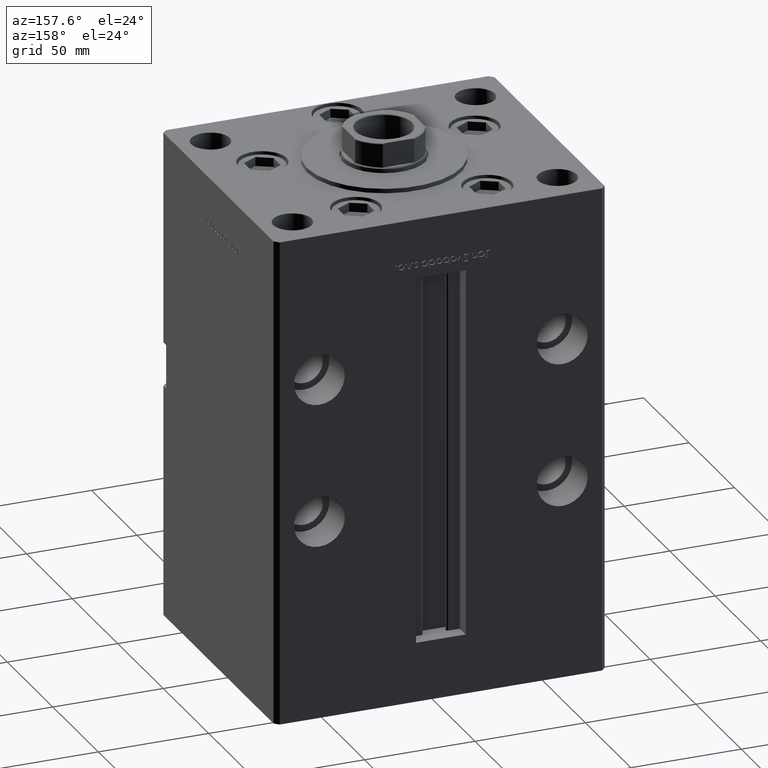
[diagram: clean part render]
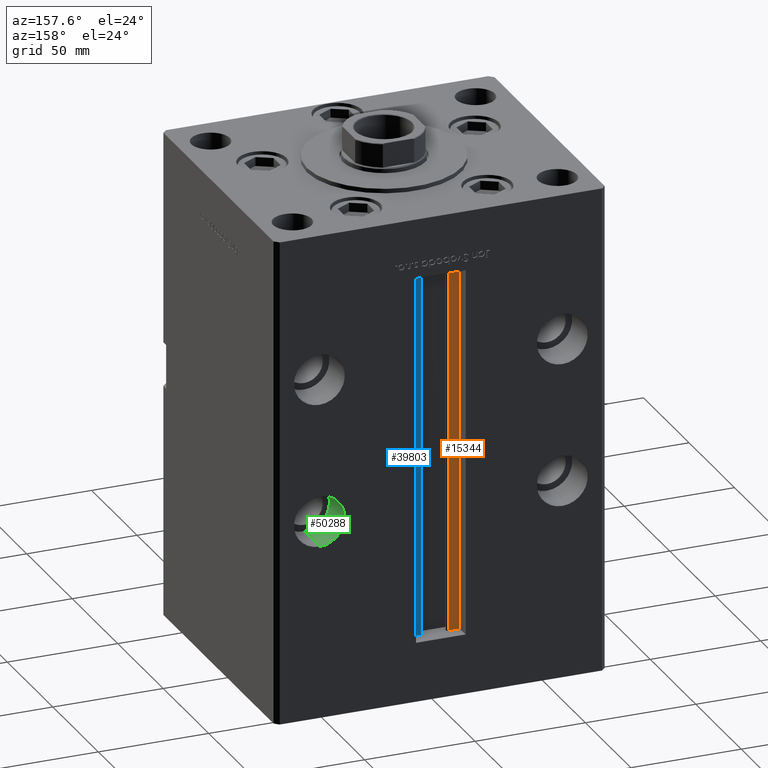
[diagram: same view with three faces highlighted in distinct colors, each labeled with its STEP entity id]
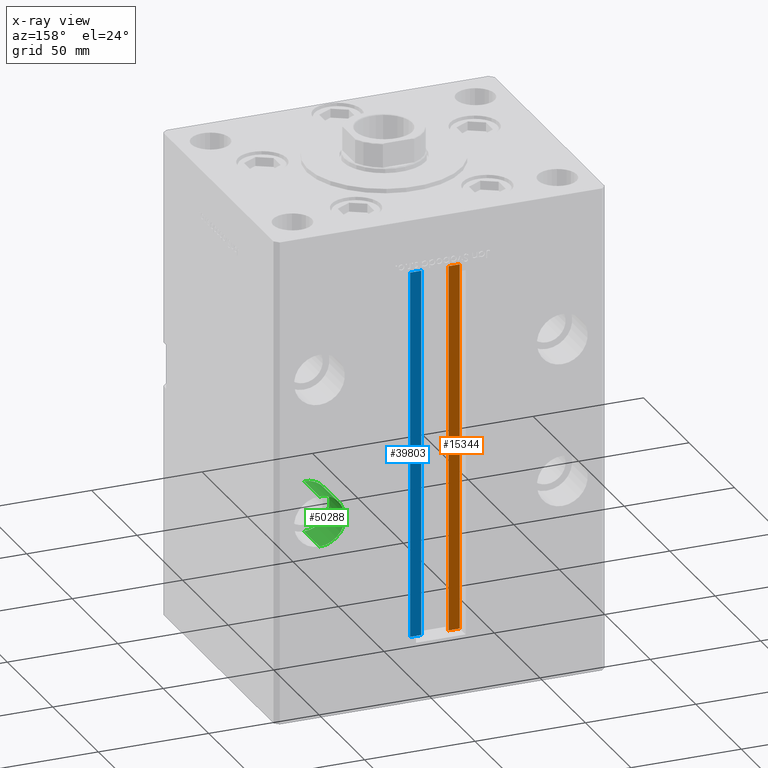
[diagram: x-ray of the same camera — body ghosted, the three highlighted faces saturated]
A machine part, auxiliary view with three faces highlighted in distinct colors.
The next image is the same camera in x-ray (body ghosted, the three faces saturated) — at least one of them is partly hidden behind the body in this view.
Their STEP definitions:

[orange] entity #15344 — the highlighted planar face has unit normal (0, -1, 0).
#2243 = CARTESIAN_POINT ( 'NONE',  ( -6.183333333334001480, 56.00000000000000000, 0.000000000000000000 ) ) ;
#4220 = CARTESIAN_POINT ( 'NONE',  ( -6.183333333334001480, 56.00000000000000000, 0.000000000000000000 ) ) ;
#5811 = EDGE_CURVE ( 'NONE', #18081, #52448, #6895, .T. ) ;
#6392 = LINE ( 'NONE', #17924, #9215 ) ;
#6895 = LINE ( 'NONE', #52200, #39136 ) ;
#7180 = EDGE_CURVE ( 'NONE', #18081, #47303, #6392, .T. ) ;
#7413 = DIRECTION ( 'NONE',  ( -0.000000000000000000, -0.000000000000000000, 1.000000000000000000 ) ) ;
#9215 = VECTOR ( 'NONE', #30258, 1000.000000000000000 ) ;
#9459 = EDGE_CURVE ( 'NONE', #52448, #33593, #44421, .T. ) ;
#10395 = DIRECTION ( 'NONE',  ( 1.000000000000000000, -0.000000000000000000, -0.000000000000000000 ) ) ;
#14864 = FACE_OUTER_BOUND ( 'NONE', #33101, .T. ) ;
#15121 = DIRECTION ( 'NONE',  ( 0.000000000000000000, 0.000000000000000000, -1.000000000000000000 ) ) ;
#15344 = ADVANCED_FACE ( 'NONE', ( #14864 ), #27181, .F. ) ;
#15470 = CARTESIAN_POINT ( 'NONE',  ( -6.183333333334001480, 56.00000000000000000, 0.000000000000000000 ) ) ;
#17924 = CARTESIAN_POINT ( 'NONE',  ( -11.25000000000000178, 56.00000000000000000, 0.000000000000000000 ) ) ;
#18081 = VERTEX_POINT ( 'NONE', #27064 ) ;
#18265 = CARTESIAN_POINT ( 'NONE',  ( 0.000000000000000000, 56.00000000000000000, 167.0000000000000000 ) ) ;
#21359 = ORIENTED_EDGE ( 'NONE', *, *, #7180, .T. ) ;
#22542 = ORIENTED_EDGE ( 'NONE', *, *, #5811, .F. ) ;
#23544 = CARTESIAN_POINT ( 'NONE',  ( -11.25000000000000178, 56.00000000000000000, 166.9999999999999432 ) ) ;
#24927 = ORIENTED_EDGE ( 'NONE', *, *, #38733, .F. ) ;
#27064 = CARTESIAN_POINT ( 'NONE',  ( -11.25000000000000178, 56.00000000000000000, 0.000000000000000000 ) ) ;
#27181 = PLANE ( 'NONE',  #27314 ) ;
#27314 = AXIS2_PLACEMENT_3D ( 'NONE', #2243, #43539, #15121 ) ;
#30258 = DIRECTION ( 'NONE',  ( -0.000000000000000000, -0.000000000000000000, 1.000000000000000000 ) ) ;
#33101 = EDGE_LOOP ( 'NONE', ( #34044, #22542, #21359, #24927 ) ) ;
#33593 = VERTEX_POINT ( 'NONE', #50692 ) ;
#34044 = ORIENTED_EDGE ( 'NONE', *, *, #9459, .F. ) ;
#38733 = EDGE_CURVE ( 'NONE', #33593, #47303, #47226, .T. ) ;
#39098 = VECTOR ( 'NONE', #51762, 1000.000000000000000 ) ;
#39136 = VECTOR ( 'NONE', #10395, 1000.000000000000000 ) ;
#42529 = VECTOR ( 'NONE', #7413, 1000.000000000000000 ) ;
#43539 = DIRECTION ( 'NONE',  ( 0.000000000000000000, -1.000000000000000000, -0.000000000000000000 ) ) ;
#44421 = LINE ( 'NONE', #15470, #42529 ) ;
#47226 = LINE ( 'NONE', #18265, #39098 ) ;
#47303 = VERTEX_POINT ( 'NONE', #23544 ) ;
#50692 = CARTESIAN_POINT ( 'NONE',  ( -6.183333333334002369, 56.00000000000000000, 166.9999999999999432 ) ) ;
#51762 = DIRECTION ( 'NONE',  ( -1.000000000000000000, 0.000000000000000000, 0.000000000000000000 ) ) ;
#52200 = CARTESIAN_POINT ( 'NONE',  ( -6.183333333334001480, 56.00000000000000000, 0.000000000000000000 ) ) ;
#52448 = VERTEX_POINT ( 'NONE', #4220 ) ;

[blue] entity #39803 — the highlighted planar face has unit normal (0, -1, 0).
#1501 = VECTOR ( 'NONE', #27556, 1000.000000000000000 ) ;
#3678 = DIRECTION ( 'NONE',  ( 0.000000000000000000, -0.000000000000000000, -1.000000000000000000 ) ) ;
#3928 = LINE ( 'NONE', #19488, #22505 ) ;
#4878 = VECTOR ( 'NONE', #16271, 1000.000000000000000 ) ;
#5606 = ORIENTED_EDGE ( 'NONE', *, *, #31191, .F. ) ;
#5858 = LINE ( 'NONE', #35084, #47286 ) ;
#5913 = EDGE_CURVE ( 'NONE', #44929, #18530, #48702, .T. ) ;
#6717 = AXIS2_PLACEMENT_3D ( 'NONE', #24060, #32359, #3678 ) ;
#6809 = EDGE_CURVE ( 'NONE', #37535, #22740, #14694, .T. ) ;
#11466 = FACE_OUTER_BOUND ( 'NONE', #23440, .T. ) ;
#13210 = ORIENTED_EDGE ( 'NONE', *, *, #6809, .F. ) ;
#14694 = LINE ( 'NONE', #51933, #1501 ) ;
#16271 = DIRECTION ( 'NONE',  ( -0.000000000000000000, -0.000000000000000000, 1.000000000000000000 ) ) ;
#18530 = VERTEX_POINT ( 'NONE', #36578 ) ;
#18721 = DIRECTION ( 'NONE',  ( -1.000000000000000000, 0.000000000000000000, 0.000000000000000000 ) ) ;
#19488 = CARTESIAN_POINT ( 'NONE',  ( 6.183333333334001480, 56.00000000000000000, 0.000000000000000000 ) ) ;
#19763 = PLANE ( 'NONE',  #6717 ) ;
#22505 = VECTOR ( 'NONE', #35852, 1000.000000000000000 ) ;
#22740 = VERTEX_POINT ( 'NONE', #39413 ) ;
#23440 = EDGE_LOOP ( 'NONE', ( #13210, #5606, #43199, #31876 ) ) ;
#24060 = CARTESIAN_POINT ( 'NONE',  ( 6.183333333334001480, 56.00000000000000000, 0.000000000000000000 ) ) ;
#27556 = DIRECTION ( 'NONE',  ( -0.000000000000000000, -0.000000000000000000, 1.000000000000000000 ) ) ;
#30164 = EDGE_CURVE ( 'NONE', #22740, #18530, #5858, .T. ) ;
#31191 = EDGE_CURVE ( 'NONE', #44929, #37535, #3928, .T. ) ;
#31876 = ORIENTED_EDGE ( 'NONE', *, *, #30164, .F. ) ;
#32359 = DIRECTION ( 'NONE',  ( 0.000000000000000000, -1.000000000000000000, 0.000000000000000000 ) ) ;
#35084 = CARTESIAN_POINT ( 'NONE',  ( 0.000000000000000000, 56.00000000000000000, 167.0000000000000000 ) ) ;
#35852 = DIRECTION ( 'NONE',  ( 1.000000000000000000, 0.000000000000000000, 0.000000000000000000 ) ) ;
#36578 = CARTESIAN_POINT ( 'NONE',  ( 6.183333333334001480, 56.00000000000000000, 166.9999999999999432 ) ) ;
#37535 = VERTEX_POINT ( 'NONE', #52355 ) ;
#39413 = CARTESIAN_POINT ( 'NONE',  ( 11.25000000000000178, 56.00000000000000000, 166.9999999999999432 ) ) ;
#39803 = ADVANCED_FACE ( 'NONE', ( #11466 ), #19763, .F. ) ;
#41634 = CARTESIAN_POINT ( 'NONE',  ( 6.183333333334001480, 56.00000000000000000, 0.000000000000000000 ) ) ;
#43199 = ORIENTED_EDGE ( 'NONE', *, *, #5913, .T. ) ;
#44929 = VERTEX_POINT ( 'NONE', #41634 ) ;
#47286 = VECTOR ( 'NONE', #18721, 1000.000000000000000 ) ;
#48702 = LINE ( 'NONE', #49217, #4878 ) ;
#49217 = CARTESIAN_POINT ( 'NONE',  ( 6.183333333334001480, 56.00000000000000000, 0.000000000000000000 ) ) ;
#51933 = CARTESIAN_POINT ( 'NONE',  ( 11.25000000000000178, 56.00000000000000000, 0.000000000000000000 ) ) ;
#52355 = CARTESIAN_POINT ( 'NONE',  ( 11.25000000000000178, 56.00000000000000000, 0.000000000000000000 ) ) ;

[green] entity #50288 — the highlighted cylindrical surface (edge-blend (fillet) strip) has radius 11.5 mm, axis along (0, 1, 0).
#3415 = DIRECTION ( 'NONE',  ( 0.000000000000000000, 1.000000000000000000, -0.000000000000000000 ) ) ;
#3447 = ORIENTED_EDGE ( 'NONE', *, *, #27827, .T. ) ;
#3944 = CARTESIAN_POINT ( 'NONE',  ( 55.00000000000000000, 45.50000000000000000, 63.00000000000000000 ) ) ;
#5467 = DIRECTION ( 'NONE',  ( -0.000000000000000000, 1.000000000000000000, -0.000000000000000000 ) ) ;
#14680 = VECTOR ( 'NONE', #33157, 1000.000000000000000 ) ;
#15607 = ORIENTED_EDGE ( 'NONE', *, *, #47474, .F. ) ;
#16026 = CYLINDRICAL_SURFACE ( 'NONE', #33417, 11.49999999999999645 ) ;
#16808 = CARTESIAN_POINT ( 'NONE',  ( 55.00000000000000000, 45.50000000000000000, 51.50000000000000711 ) ) ;
#17728 = ORIENTED_EDGE ( 'NONE', *, *, #39732, .F. ) ;
#18915 = CARTESIAN_POINT ( 'NONE',  ( 55.00000000000000000, 62.50000000000000000, 51.50000000000000711 ) ) ;
#20038 = FACE_OUTER_BOUND ( 'NONE', #35041, .T. ) ;
#20290 = DIRECTION ( 'NONE',  ( -0.000000000000000000, 1.000000000000000000, -0.000000000000000000 ) ) ;
#20979 = VERTEX_POINT ( 'NONE', #27267 ) ;
#21012 = DIRECTION ( 'NONE',  ( 0.000000000000000000, 1.000000000000000000, -0.000000000000000000 ) ) ;
#24098 = CARTESIAN_POINT ( 'NONE',  ( 55.00000000000000000, 45.50000000000000000, 74.50000000000000000 ) ) ;
#24261 = AXIS2_PLACEMENT_3D ( 'NONE', #49163, #21012, #38155 ) ;
#27267 = CARTESIAN_POINT ( 'NONE',  ( 55.00000000000000000, 45.50000000000000000, 51.50000000000000711 ) ) ;
#27827 = EDGE_CURVE ( 'NONE', #20979, #50516, #38503, .T. ) ;
#28540 = CIRCLE ( 'NONE', #24261, 11.49999999999999645 ) ;
#30657 = CARTESIAN_POINT ( 'NONE',  ( 55.00000000000000000, 45.50000000000000000, 74.50000000000000000 ) ) ;
#31242 = CARTESIAN_POINT ( 'NONE',  ( 55.00000000000000000, 62.50000000000000000, 74.50000000000000000 ) ) ;
#31559 = AXIS2_PLACEMENT_3D ( 'NONE', #45213, #3415, #48704 ) ;
#32171 = EDGE_CURVE ( 'NONE', #50516, #42749, #28540, .T. ) ;
#33157 = DIRECTION ( 'NONE',  ( -0.000000000000000000, 1.000000000000000000, -0.000000000000000000 ) ) ;
#33417 = AXIS2_PLACEMENT_3D ( 'NONE', #3944, #20290, #52995 ) ;
#35041 = EDGE_LOOP ( 'NONE', ( #17728, #3447, #44390, #15607 ) ) ;
#38155 = DIRECTION ( 'NONE',  ( 0.000000000000000000, 0.000000000000000000, -1.000000000000000000 ) ) ;
#38503 = LINE ( 'NONE', #16808, #14680 ) ;
#39732 = EDGE_CURVE ( 'NONE', #20979, #52314, #43546, .T. ) ;
#42204 = LINE ( 'NONE', #30657, #42764 ) ;
#42749 = VERTEX_POINT ( 'NONE', #31242 ) ;
#42764 = VECTOR ( 'NONE', #5467, 1000.000000000000000 ) ;
#43546 = CIRCLE ( 'NONE', #31559, 11.49999999999999645 ) ;
#44390 = ORIENTED_EDGE ( 'NONE', *, *, #32171, .T. ) ;
#45213 = CARTESIAN_POINT ( 'NONE',  ( 55.00000000000000000, 45.50000000000000000, 63.00000000000000000 ) ) ;
#47474 = EDGE_CURVE ( 'NONE', #52314, #42749, #42204, .T. ) ;
#48704 = DIRECTION ( 'NONE',  ( 0.000000000000000000, 0.000000000000000000, -1.000000000000000000 ) ) ;
#49163 = CARTESIAN_POINT ( 'NONE',  ( 55.00000000000000000, 62.50000000000000000, 63.00000000000000000 ) ) ;
#50288 = ADVANCED_FACE ( 'NONE', ( #20038 ), #16026, .F. ) ;
#50516 = VERTEX_POINT ( 'NONE', #18915 ) ;
#52314 = VERTEX_POINT ( 'NONE', #24098 ) ;
#52995 = DIRECTION ( 'NONE',  ( 0.000000000000000000, 0.000000000000000000, 1.000000000000000000 ) ) ;